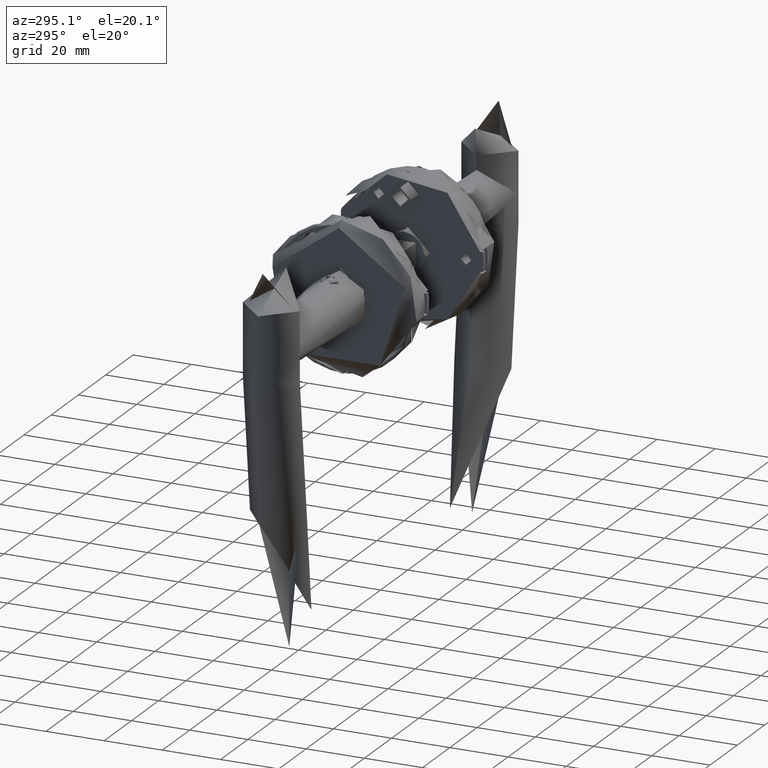
[diagram: clean part render]
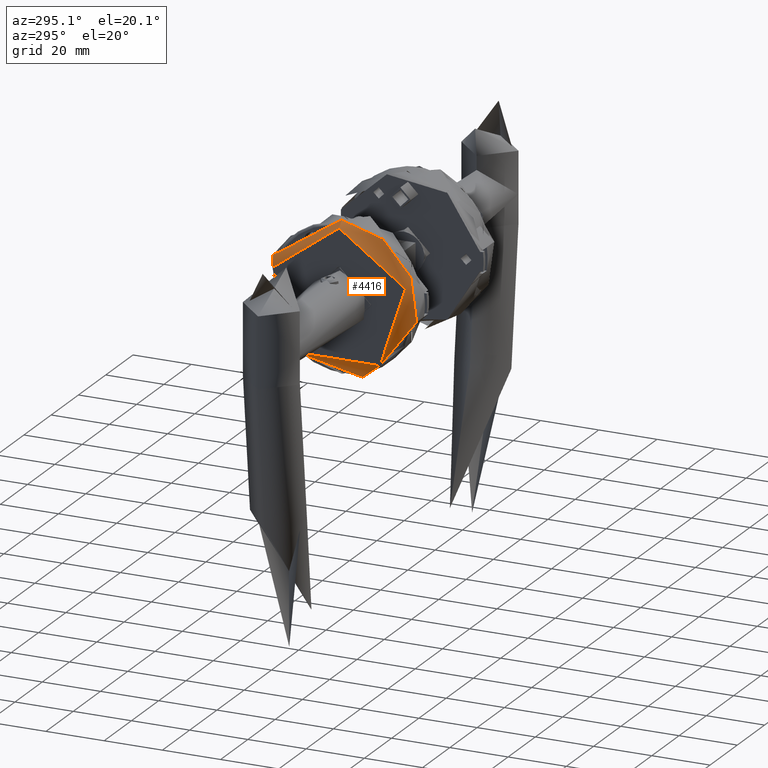
[diagram: same view with one face highlighted and labeled with its STEP entity id]
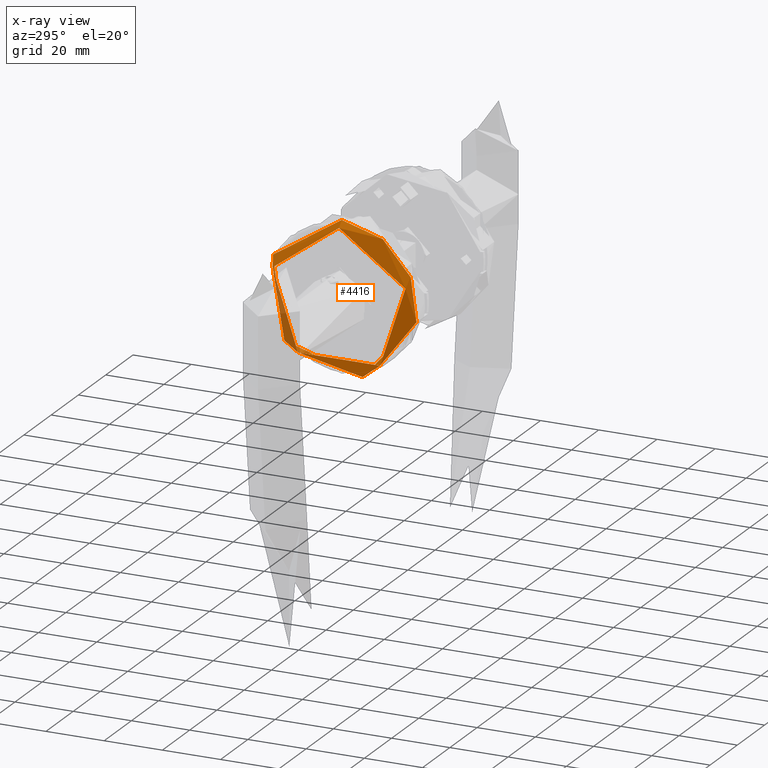
[diagram: x-ray of the same camera — body ghosted, the highlighted face saturated]
A machine part, auxiliary view. The second image highlights one B-rep face of the part: STEP entity #4416.
The next image is the same camera in x-ray: the body ghosted, the highlighted face saturated — about 12% of this face is hidden behind the body in this view.
In plain terms, the highlighted toroidal blend (fillet) surface has major radius 24 mm and minor (blend) radius 2 mm.
Its self-contained STEP definition (entity closure, byte-faithful):
#611 = CARTESIAN_POINT ( 'NONE',  ( 0.0000000000000000000, 0.0000000000000000000, 10.50000000000000000 ) ) ;
#625 = CARTESIAN_POINT ( 'NONE',  ( 0.0000000000000000000, 0.0000000000000000000, 8.500000000000000000 ) ) ;
#650 = AXIS2_PLACEMENT_3D ( 'NONE', #611, #1941, #8118 ) ;
#1256 = ORIENTED_EDGE ( 'NONE', *, *, #12039, .F. ) ;
#1542 = CARTESIAN_POINT ( 'NONE',  ( 0.0000000000000000000, 0.0000000000000000000, 8.500000000000000000 ) ) ;
#1941 = DIRECTION ( 'NONE',  ( 0.0000000000000000000, 0.0000000000000000000, 1.000000000000000000 ) ) ;
#3092 = DIRECTION ( 'NONE',  ( 1.000000000000000000, 0.0000000000000000000, 0.0000000000000000000 ) ) ;
#3323 = FACE_OUTER_BOUND ( 'NONE', #12042, .T. ) ;
#3751 = EDGE_CURVE ( 'NONE', #15543, #15543, #7588, .T. ) ;
#4416 = ADVANCED_FACE ( 'NONE', ( #11817, #3323 ), #6884, .T. ) ;
#4892 = VERTEX_POINT ( 'NONE', #8674 ) ;
#4922 = AXIS2_PLACEMENT_3D ( 'NONE', #1542, #19488, #3092 ) ;
#5641 = EDGE_LOOP ( 'NONE', ( #9647 ) ) ;
#6884 = TOROIDAL_SURFACE ( 'NONE', #4922, 24.00000000000000000, 2.000000000000000000 ) ;
#7588 = CIRCLE ( 'NONE', #9224, 26.00000000000000400 ) ;
#8118 = DIRECTION ( 'NONE',  ( 1.000000000000000000, 0.0000000000000000000, 0.0000000000000000000 ) ) ;
#8674 = CARTESIAN_POINT ( 'NONE',  ( 24.00000000000000000, 0.0000000000000000000, 10.50000000000000000 ) ) ;
#9224 = AXIS2_PLACEMENT_3D ( 'NONE', #625, #12601, #15668 ) ;
#9647 = ORIENTED_EDGE ( 'NONE', *, *, #3751, .F. ) ;
#11746 = CARTESIAN_POINT ( 'NONE',  ( 26.00000000000000400, 0.0000000000000000000, 8.500000000000000000 ) ) ;
#11817 = FACE_OUTER_BOUND ( 'NONE', #5641, .T. ) ;
#12039 = EDGE_CURVE ( 'NONE', #4892, #4892, #18065, .T. ) ;
#12042 = EDGE_LOOP ( 'NONE', ( #1256 ) ) ;
#12601 = DIRECTION ( 'NONE',  ( -0.0000000000000000000, -0.0000000000000000000, -1.000000000000000000 ) ) ;
#15543 = VERTEX_POINT ( 'NONE', #11746 ) ;
#15668 = DIRECTION ( 'NONE',  ( 1.000000000000000000, 0.0000000000000000000, 0.0000000000000000000 ) ) ;
#18065 = CIRCLE ( 'NONE', #650, 24.00000000000000000 ) ;
#19488 = DIRECTION ( 'NONE',  ( 0.0000000000000000000, 0.0000000000000000000, 1.000000000000000000 ) ) ;